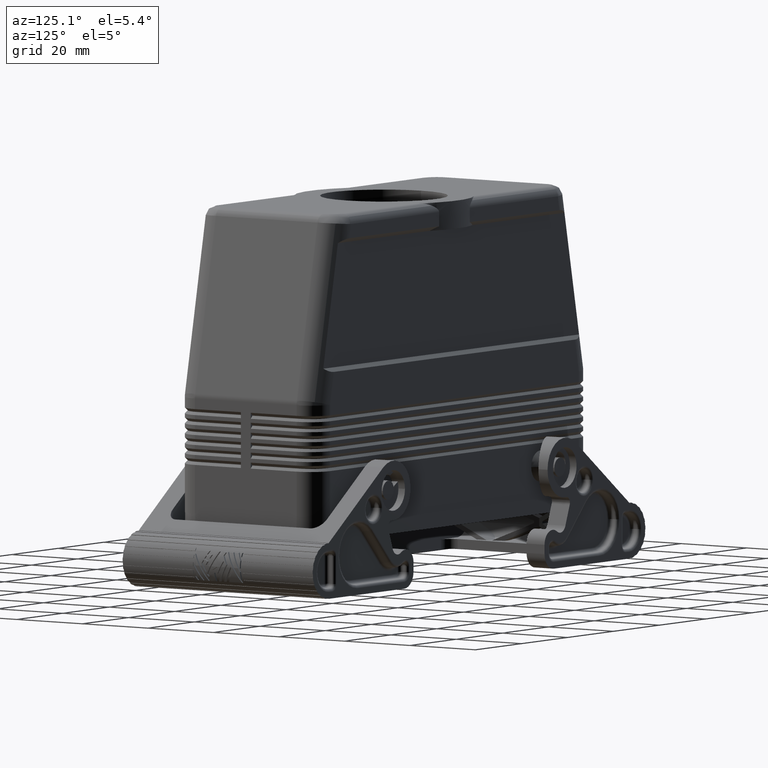
[diagram: clean part render]
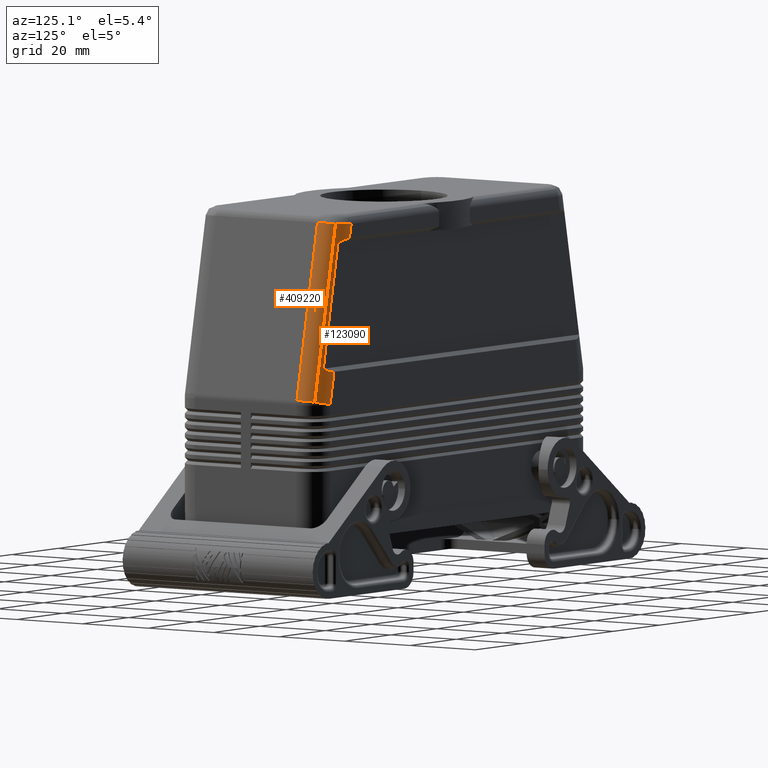
[diagram: same view with one multi-face feature highlighted, each face labeled with its STEP entity id]
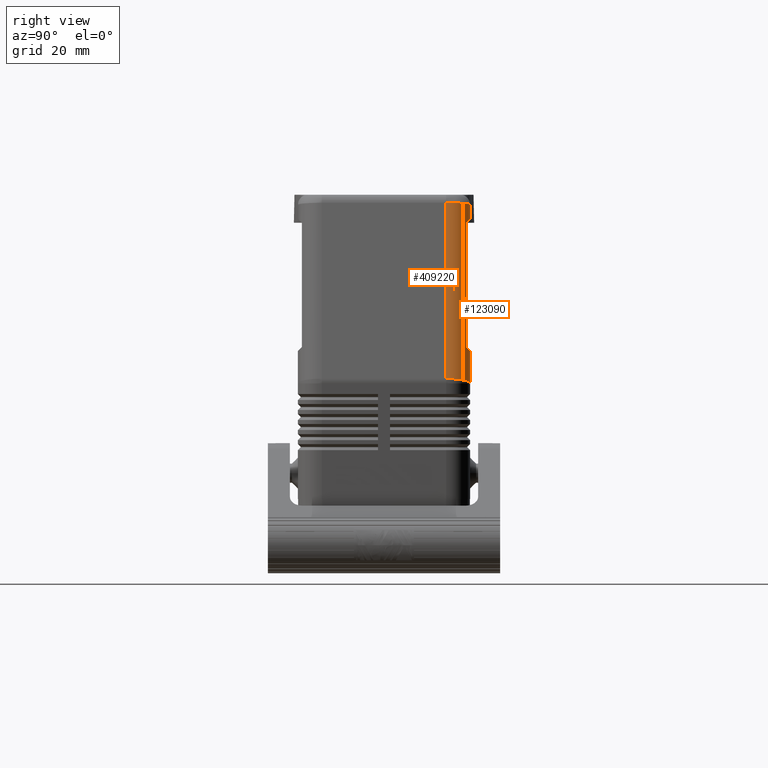
[diagram: same view with one multi-face feature highlighted, each face labeled with its STEP entity id]
A machine part, auxiliary view. The highlighted faces form ONE feature: a constant-radius fillet chain: 2 tangent blend faces with common blend radius 6 mm. The faces share edges in the B-rep.
A second angle (right view) of the same feature is appended — it is thin or edge-on in the first view.
Their STEP definitions:
[1] entity #123090 (Cylinder):
#27580=CARTESIAN_POINT('',(54.,21.5,33.8933621682081));
#27590=VERTEX_POINT('',#27580);
#27620=CARTESIAN_POINT('',(54.,21.5,33.8933621682081));
#27630=DIRECTION('',(-0.200166412454251,4.293782E-16,0.979761913591866))
;
#27640=VECTOR('',#27630,8.27408957148837);
#27650=LINE('',#27620,#27640);
#27660=CARTESIAN_POINT('',(52.34380517415,21.5,42.));
#27670=VERTEX_POINT('',#27660);
#27680=EDGE_CURVE('',#27590,#27670,#27650,.T.);
#109340=CARTESIAN_POINT('',(49.191304178416,20.5,74.));
#109350=VERTEX_POINT('',#109340);
#109380=CARTESIAN_POINT('',(46.827676141892,15.5,69.));
#109390=DIRECTION('',(0.,-0.707106781186549,0.707106781186546));
#109400=DIRECTION('',(-0.277571984143553,0.679320908561855,
0.679320908561858));
#109410=AXIS2_PLACEMENT_3D('',#109380,#109390,#109400);
#109420=ELLIPSE('',#109410,8.66055442299348,6.);
#109430=CARTESIAN_POINT('',(45.6018696902791,21.5,75.));
#109440=VERTEX_POINT('',#109430);
#109450=EDGE_CURVE('',#109350,#109440,#109420,.T.);
#109960=CARTESIAN_POINT('',(55.5246375117493,20.5,43.));
#109970=VERTEX_POINT('',#109960);
#110000=CARTESIAN_POINT('',(55.5246375117493,20.5,43.));
#110010=DIRECTION('',(-0.200166412454252,0.,0.979761913591866));
#110020=VECTOR('',#110010,31.6403399335581);
#110030=LINE('',#110000,#110020);
#110040=EDGE_CURVE('',#109970,#109350,#110030,.T.);
#110220=CARTESIAN_POINT('',(45.6018696902791,21.5,75.));
#110230=DIRECTION('',(-0.200166412454253,-9.945182E-16,0.979761913591865
));
#110240=VECTOR('',#110230,3.57229644411137);
#110250=LINE('',#110220,#110240);
#110260=CARTESIAN_POINT('',(44.8868159268382,21.5,78.5));
#110270=VERTEX_POINT('',#110260);
#110280=EDGE_CURVE('',#109440,#110270,#110250,.T.);
#112390=CARTESIAN_POINT('',(44.8868159268382,15.5,78.5));
#112400=DIRECTION('',(-0.082816630117557,2.451865E-16,0.996564802597388)
);
#112410=DIRECTION('',(0.996564802597388,-3.307266E-15,0.082816630117557)
);
#112420=AXIS2_PLACEMENT_3D('',#112390,#112400,#112410);
#112430=ELLIPSE('',#112420,6.04245826502848,6.);
#112440=CARTESIAN_POINT('',(49.1448016995008,19.7426406871193,
78.8538475690304));
#112450=VERTEX_POINT('',#112440);
#112460=EDGE_CURVE('',#112450,#110270,#112430,.T.);
#121400=CARTESIAN_POINT('',(51.1179987225371,15.5,48.));
#121410=DIRECTION('',(-5.551115E-17,-0.707106781186546,
-0.707106781186549));
#121420=DIRECTION('',(0.277571984143555,0.679320908561857,
-0.679320908561854));
#121430=AXIS2_PLACEMENT_3D('',#121400,#121410,#121420);
#121440=ELLIPSE('',#121430,8.66055442299345,6.);
#121450=EDGE_CURVE('',#27670,#109970,#121440,.T.);
#122100=CARTESIAN_POINT('',(54.,15.5,33.8933621682081));
#122110=DIRECTION('',(-0.200166412454252,0.,0.979761913591866));
#122120=DIRECTION('',(0.979761913591866,0.,0.200166412454252));
#122130=AXIS2_PLACEMENT_3D('',#122100,#122110,#122120);
#122140=CIRCLE('',#122130,6.00000000000001);
#122150=CARTESIAN_POINT('',(58.1567777582947,19.7426406871193,
34.7425963338812));
#122160=VERTEX_POINT('',#122150);
#122190=EDGE_CURVE('',#122160,#27590,#122140,.T.);
#122890=CARTESIAN_POINT('',(52.5186710272441,15.5,41.1440776664345));
#122900=DIRECTION('',(-0.200166412454252,0.,0.979761913591866));
#122910=DIRECTION('',(0.692796293049117,0.707106781186547,
0.141539027612185));
#122920=AXIS2_PLACEMENT_3D('',#122890,#122900,#122910);
#122930=CYLINDRICAL_SURFACE('',#122920,6.);
#122940=CARTESIAN_POINT('',(56.6754487855388,19.7426406871193,
41.9933118321076));
#122950=DIRECTION('',(-0.200166412454252,0.,0.979761913591866));
#122960=VECTOR('',#122950,1.);
#122970=LINE('',#122940,#122960);
#122980=EDGE_CURVE('',#122160,#112450,#122970,.T.);
#122990=ORIENTED_EDGE('',*,*,#122980,.F.);
#123000=ORIENTED_EDGE('',*,*,#112460,.F.);
#123010=ORIENTED_EDGE('',*,*,#110280,.T.);
#123020=ORIENTED_EDGE('',*,*,#109450,.T.);
#123030=ORIENTED_EDGE('',*,*,#110040,.T.);
#123040=ORIENTED_EDGE('',*,*,#121450,.T.);
#123050=ORIENTED_EDGE('',*,*,#27680,.T.);
#123060=ORIENTED_EDGE('',*,*,#122190,.T.);
#123070=EDGE_LOOP('',(#123060,#123050,#123040,#123030,#123020,#123010,
#123000,#122990));
#123080=FACE_OUTER_BOUND('',#123070,.T.);
#123090=ADVANCED_FACE('',(#123080),#122930,.T.);
[2] entity #409220 (Cylinder):
#112390=CARTESIAN_POINT('',(44.8868159268382,15.5,78.5));
#112400=DIRECTION('',(-0.082816630117557,2.451865E-16,0.996564802597388)
);
#112410=DIRECTION('',(0.996564802597388,-3.307266E-15,0.082816630117557)
);
#112420=AXIS2_PLACEMENT_3D('',#112390,#112400,#112410);
#112430=ELLIPSE('',#112420,6.04245826502848,6.);
#112440=CARTESIAN_POINT('',(49.1448016995008,19.7426406871193,
78.8538475690304));
#112450=VERTEX_POINT('',#112440);
#112480=CARTESIAN_POINT('',(50.9085171549293,15.5,79.0004160311356));
#112490=VERTEX_POINT('',#112480);
#112500=EDGE_CURVE('',#112490,#112450,#112430,.T.);
#122060=CARTESIAN_POINT('',(59.8785714815512,15.5,35.0943606429336));
#122070=VERTEX_POINT('',#122060);
#122100=CARTESIAN_POINT('',(54.,15.5,33.8933621682081));
#122110=DIRECTION('',(-0.200166412454252,0.,0.979761913591866));
#122120=DIRECTION('',(0.979761913591866,0.,0.200166412454252));
#122130=AXIS2_PLACEMENT_3D('',#122100,#122110,#122120);
#122140=CIRCLE('',#122130,6.00000000000001);
#122150=CARTESIAN_POINT('',(58.1567777582947,19.7426406871193,
34.7425963338812));
#122160=VERTEX_POINT('',#122150);
#122170=EDGE_CURVE('',#122070,#122160,#122140,.T.);
#122730=CARTESIAN_POINT('',(50.9085171549293,15.5,79.0004160311356));
#122740=DIRECTION('',(0.200166412454252,0.,-0.979761913591865));
#122750=VECTOR('',#122740,44.8129844394949);
#122760=LINE('',#122730,#122750);
#122770=EDGE_CURVE('',#112490,#122070,#122760,.T.);
#122890=CARTESIAN_POINT('',(52.5186710272441,15.5,41.1440776664345));
#122900=DIRECTION('',(-0.200166412454252,0.,0.979761913591866));
#122910=DIRECTION('',(0.692796293049117,0.707106781186547,
0.141539027612185));
#122920=AXIS2_PLACEMENT_3D('',#122890,#122900,#122910);
#122930=CYLINDRICAL_SURFACE('',#122920,6.);
#122940=CARTESIAN_POINT('',(56.6754487855388,19.7426406871193,
41.9933118321076));
#122950=DIRECTION('',(-0.200166412454252,0.,0.979761913591866));
#122960=VECTOR('',#122950,1.);
#122970=LINE('',#122940,#122960);
#122980=EDGE_CURVE('',#122160,#112450,#122970,.T.);
#409160=ORIENTED_EDGE('',*,*,#122170,.T.);
#409170=ORIENTED_EDGE('',*,*,#122770,.T.);
#409180=ORIENTED_EDGE('',*,*,#112500,.F.);
#409190=ORIENTED_EDGE('',*,*,#122980,.T.);
#409200=EDGE_LOOP('',(#409190,#409180,#409170,#409160));
#409210=FACE_OUTER_BOUND('',#409200,.T.);
#409220=ADVANCED_FACE('',(#409210),#122930,.T.);